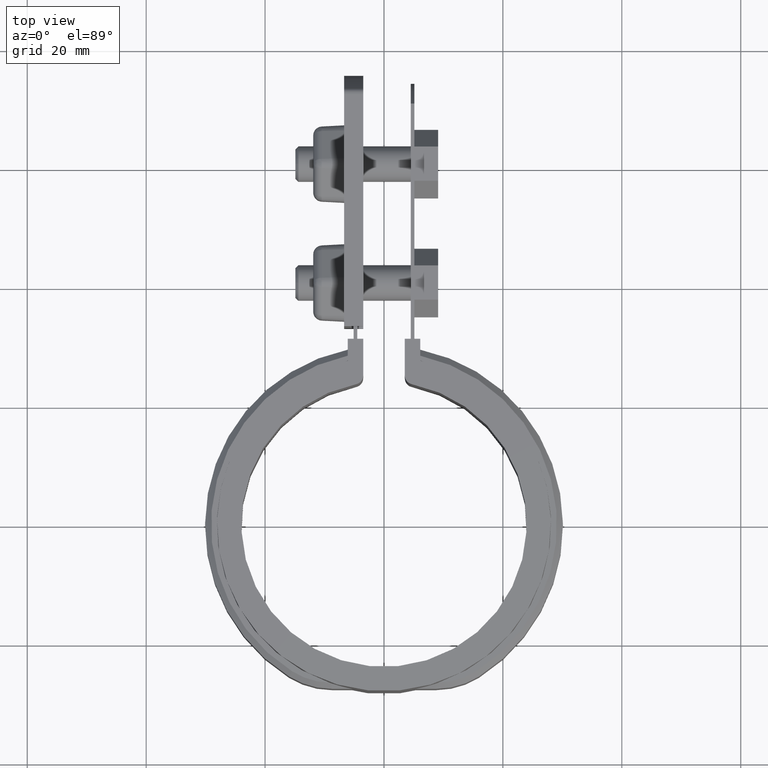
[diagram: clean part render]
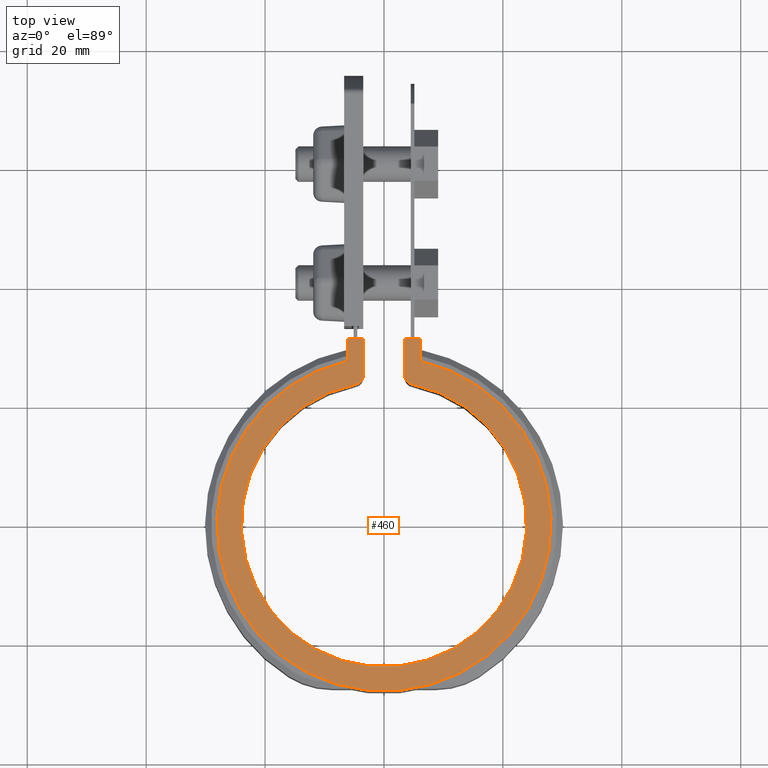
[diagram: same view with one face highlighted and labeled with its STEP entity id]
A machine part, top view. The second image highlights one B-rep face of the part: STEP entity #460.
In plain terms, the highlighted planar face has unit normal (0, 0, -1).
Its self-contained STEP definition (entity closure, byte-faithful):
#460 = ADVANCED_FACE( '', ( #932 ), #933, .F. );
#932 = FACE_OUTER_BOUND( '', #2250, .T. );
#933 = PLANE( '', #2251 );
#2250 = EDGE_LOOP( '', ( #4778, #4779, #4780, #4781, #4782, #4783, #4784, #4785, #4786, #4787 ) );
#2251 = AXIS2_PLACEMENT_3D( '', #4788, #4789, #4790 );
#4778 = ORIENTED_EDGE( '', *, *, #7468, .F. );
#4779 = ORIENTED_EDGE( '', *, *, #7469, .T. );
#4780 = ORIENTED_EDGE( '', *, *, #7459, .T. );
#4781 = ORIENTED_EDGE( '', *, *, #7296, .T. );
#4782 = ORIENTED_EDGE( '', *, *, #7470, .T. );
#4783 = ORIENTED_EDGE( '', *, *, #7471, .T. );
#4784 = ORIENTED_EDGE( '', *, *, #7472, .T. );
#4785 = ORIENTED_EDGE( '', *, *, #7450, .T. );
#4786 = ORIENTED_EDGE( '', *, *, #7458, .T. );
#4787 = ORIENTED_EDGE( '', *, *, #7473, .T. );
#4788 = CARTESIAN_POINT( '', ( -6.50000000000000, 26.7207784317748, 1.50000000000000 ) );
#4789 = DIRECTION( '', ( 0.000000000000000, 0.000000000000000, -1.00000000000000 ) );
#4790 = DIRECTION( '', ( 1.00000000000000, -5.90486220842489E-017, 0.000000000000000 ) );
#7296 = EDGE_CURVE( '', #8380, #8381, #8382, .T. );
#7450 = EDGE_CURVE( '', #8644, #8645, #8646, .T. );
#7458 = EDGE_CURVE( '', #8645, #8657, #8659, .T. );
#7459 = EDGE_CURVE( '', #8660, #8380, #8661, .T. );
#7468 = EDGE_CURVE( '', #8675, #8676, #8677, .F. );
#7469 = EDGE_CURVE( '', #8675, #8660, #8678, .F. );
#7470 = EDGE_CURVE( '', #8381, #8679, #8680, .T. );
#7471 = EDGE_CURVE( '', #8679, #8681, #8682, .T. );
#7472 = EDGE_CURVE( '', #8681, #8644, #8683, .T. );
#7473 = EDGE_CURVE( '', #8657, #8676, #8684, .F. );
#8380 = VERTEX_POINT( '', #10906 );
#8381 = VERTEX_POINT( '', #10907 );
#8382 = LINE( '', #10908, #10909 );
#8644 = VERTEX_POINT( '', #12067 );
#8645 = VERTEX_POINT( '', #12068 );
#8646 = LINE( '', #12069, #12070 );
#8657 = VERTEX_POINT( '', #12087 );
#8659 = LINE( '', #12090, #12091 );
#8660 = VERTEX_POINT( '', #12092 );
#8661 = LINE( '', #12093, #12094 );
#8675 = VERTEX_POINT( '', #12112 );
#8676 = VERTEX_POINT( '', #12113 );
#8677 = CIRCLE( '', #12114, 24.0000000000000 );
#8678 = CIRCLE( '', #12115, 1.50000000000000 );
#8679 = VERTEX_POINT( '', #12116 );
#8680 = LINE( '', #12117, #12118 );
#8681 = VERTEX_POINT( '', #12119 );
#8682 = CIRCLE( '', #12120, 28.0950000000000 );
#8683 = LINE( '', #12121, #12122 );
#8684 = CIRCLE( '', #12123, 1.50000000000000 );
#10906 = CARTESIAN_POINT( '', ( -3.49999999999999, 31.1900000000000, 1.50000000000000 ) );
#10907 = CARTESIAN_POINT( '', ( -6.10000000000000, 31.1900000000000, 1.50000000000000 ) );
#10908 = CARTESIAN_POINT( '', ( -3.50000000000000, 31.1900000000000, 1.50000000000000 ) );
#10909 = VECTOR( '', #13920, 1000.00000000000 );
#12067 = CARTESIAN_POINT( '', ( 6.10000000000001, 31.1900000000000, 1.50000000000000 ) );
#12068 = CARTESIAN_POINT( '', ( 3.50000000000002, 31.1900000000000, 1.50000000000000 ) );
#12069 = CARTESIAN_POINT( '', ( 4.50000000000001, 31.1900000000000, 1.50000000000000 ) );
#12070 = VECTOR( '', #14054, 1000.00000000000 );
#12087 = CARTESIAN_POINT( '', ( 3.50000000000000, 25.0049995001000, 1.50000000000000 ) );
#12090 = CARTESIAN_POINT( '', ( 3.50000000000000, 31.1900000000000, 1.50000000000000 ) );
#12091 = VECTOR( '', #14062, 1000.00000000000 );
#12092 = CARTESIAN_POINT( '', ( -3.49999999999999, 25.0049995001000, 1.50000000000000 ) );
#12093 = CARTESIAN_POINT( '', ( -3.49999999999999, 23.7383660979436, 1.50000000000000 ) );
#12094 = VECTOR( '', #14063, 1000.00000000000 );
#12112 = CARTESIAN_POINT( '', ( -4.70588235294117, 23.5341171765647, 1.50000000000000 ) );
#12113 = CARTESIAN_POINT( '', ( 4.70588235294118, 23.5341171765647, 1.50000000000000 ) );
#12114 = AXIS2_PLACEMENT_3D( '', #14080, #14081, #14082 );
#12115 = AXIS2_PLACEMENT_3D( '', #14083, #14084, #14085 );
#12116 = CARTESIAN_POINT( '', ( -6.10000000000000, 27.4247885133140, 1.50000000000000 ) );
#12117 = CARTESIAN_POINT( '', ( -6.10000000000000, 31.1900000000000, 1.50000000000000 ) );
#12118 = VECTOR( '', #14086, 1000.00000000000 );
#12119 = CARTESIAN_POINT( '', ( 6.09999999999999, 27.4247885133140, 1.50000000000000 ) );
#12120 = AXIS2_PLACEMENT_3D( '', #14087, #14088, #14089 );
#12121 = CARTESIAN_POINT( '', ( 6.10000000000001, 27.4247885133140, 1.50000000000000 ) );
#12122 = VECTOR( '', #14090, 1000.00000000000 );
#12123 = AXIS2_PLACEMENT_3D( '', #14091, #14092, #14093 );
#13920 = DIRECTION( '', ( -1.00000000000000, 0.000000000000000, 0.000000000000000 ) );
#14054 = DIRECTION( '', ( -1.00000000000000, 0.000000000000000, 0.000000000000000 ) );
#14062 = DIRECTION( '', ( -6.07153216591882E-017, -1.00000000000000, 0.000000000000000 ) );
#14063 = DIRECTION( '', ( 6.07153216591882E-017, 1.00000000000000, 0.000000000000000 ) );
#14080 = CARTESIAN_POINT( '', ( 6.93889390390723E-015, 0.000000000000000, 1.50000000000000 ) );
#14081 = DIRECTION( '', ( 0.000000000000000, 0.000000000000000, -1.00000000000000 ) );
#14082 = DIRECTION( '', ( -1.00000000000000, 0.000000000000000, 0.000000000000000 ) );
#14083 = CARTESIAN_POINT( '', ( -4.99999999999999, 25.0049995001000, 1.50000000000000 ) );
#14084 = DIRECTION( '', ( 0.000000000000000, 0.000000000000000, -1.00000000000000 ) );
#14085 = DIRECTION( '', ( -1.00000000000000, 0.000000000000000, 0.000000000000000 ) );
#14086 = DIRECTION( '', ( -6.07153216591882E-017, -1.00000000000000, 0.000000000000000 ) );
#14087 = CARTESIAN_POINT( '', ( 0.000000000000000, 0.000000000000000, 1.50000000000000 ) );
#14088 = DIRECTION( '', ( 0.000000000000000, 0.000000000000000, 1.00000000000000 ) );
#14089 = DIRECTION( '', ( 1.00000000000000, -6.07153216591882E-017, 0.000000000000000 ) );
#14090 = DIRECTION( '', ( 6.07153216591882E-017, 1.00000000000000, 0.000000000000000 ) );
#14091 = CARTESIAN_POINT( '', ( 5.00000000000000, 25.0049995001000, 1.50000000000000 ) );
#14092 = DIRECTION( '', ( 0.000000000000000, 0.000000000000000, -1.00000000000000 ) );
#14093 = DIRECTION( '', ( -1.00000000000000, 0.000000000000000, 0.000000000000000 ) );